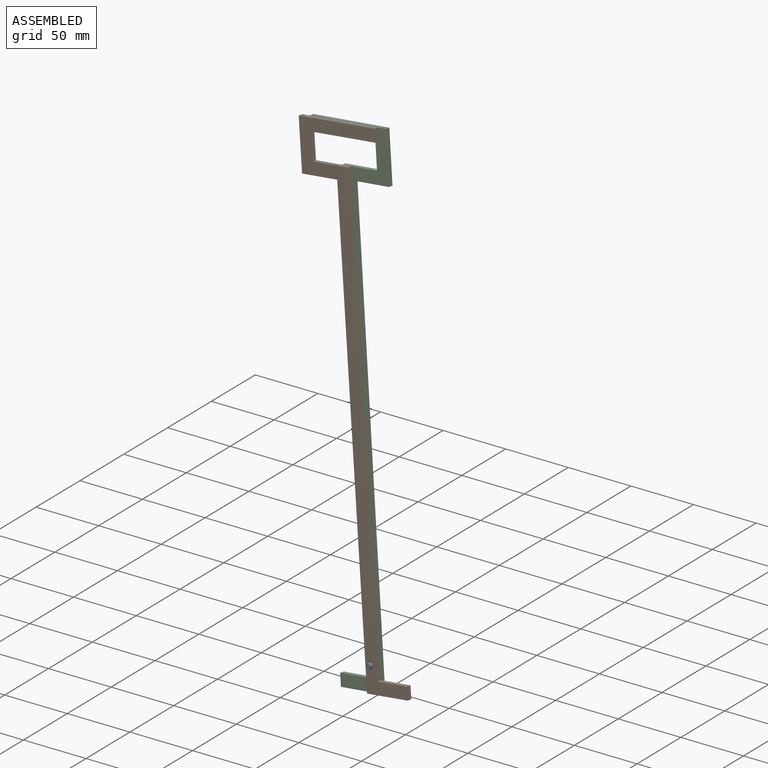
[diagram: assembled view]
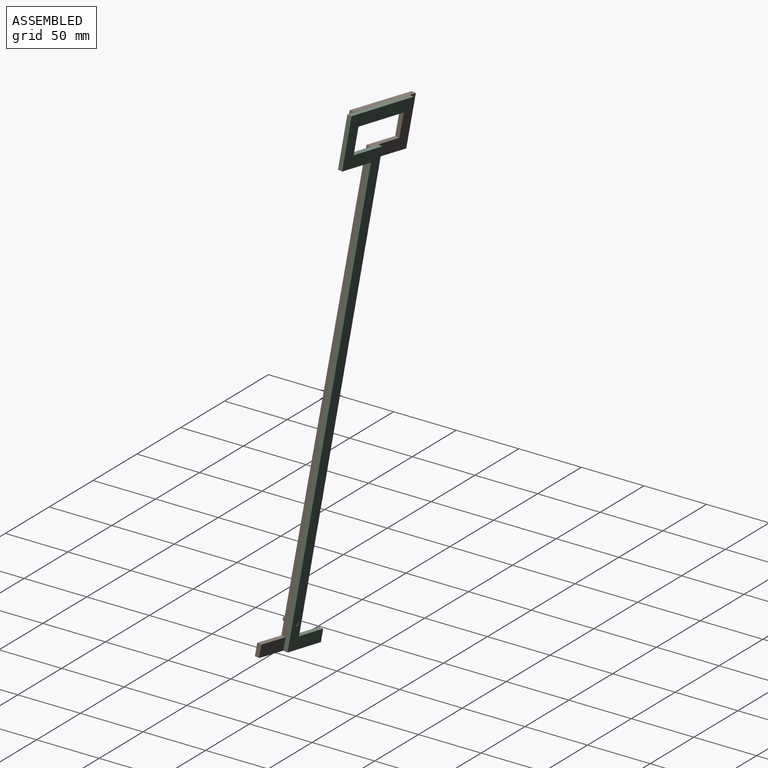
[diagram: assembled view, second angle]
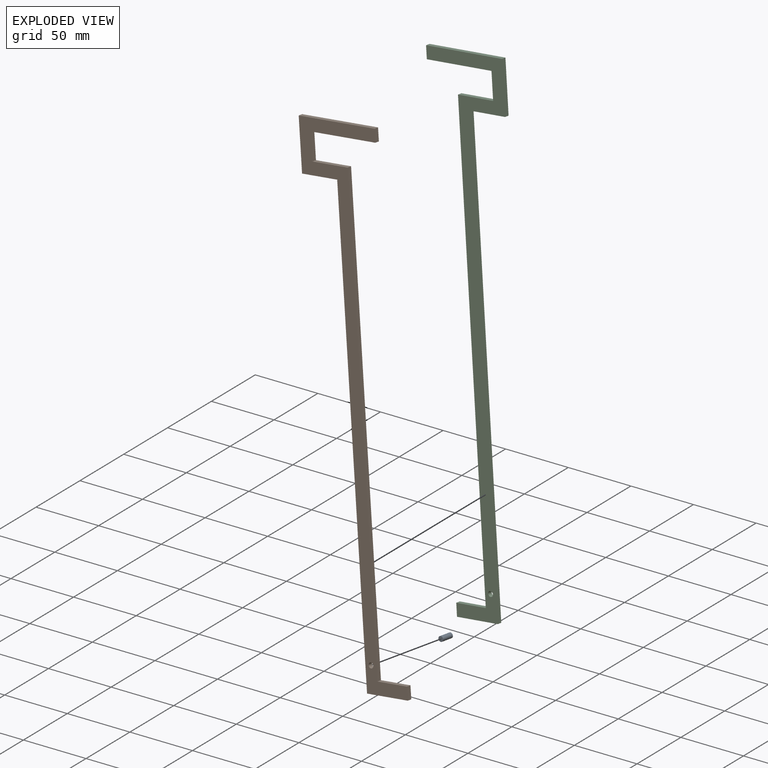
[diagram: exploded view]
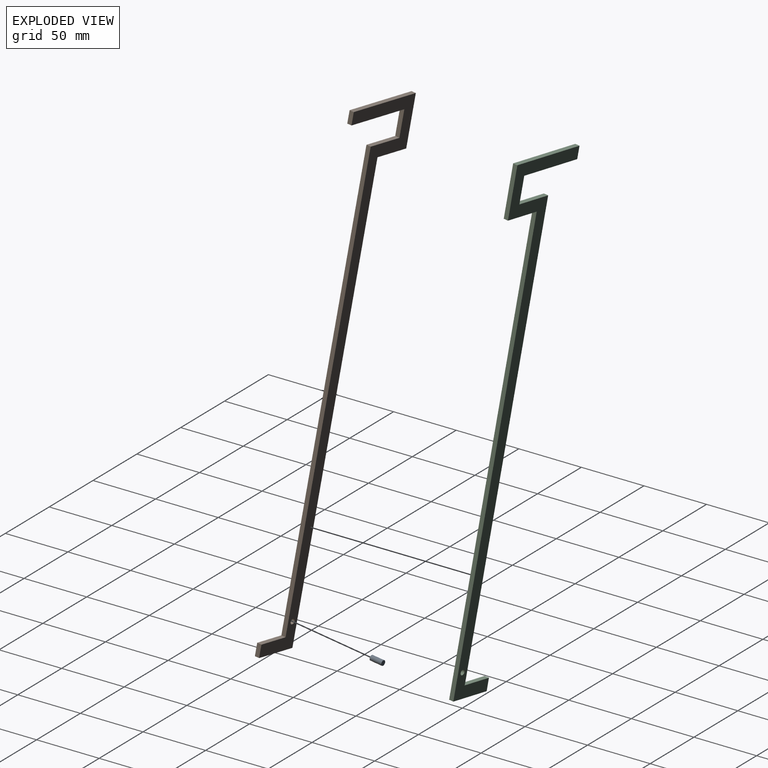
[diagram: exploded view, second angle]
ASSEMBLY  parts=3 mates=2
PART A: 3 faces, bbox 4x10x4 mm
  f0: cylinder r=2mm len=10mm, axis (0,1,0), area 125.7mm2, adj f1,f2
  f1: plane 4x4mm, normal (0,-1,0), area 12.6mm2, adj f0
  f2: plane 4x4mm, normal (0,1,0), area 12.6mm2, adj f0
PART B: 15 faces, bbox 64.8x3.6x389.6 mm
  f0: plane 9.55x3.6mm, normal (1,0,0), area 34.4mm2, adj f2,f3,f10,f12
  f1: plane 9.55x3.6mm, normal (1,0,0), area 34.4mm2, adj f10,f11,f12,f13
  f2: plane 34.78x3.6mm, normal (0,0,-1), area 125.3mm2, adj f0,f5,f10,f12
  f3: plane 25.23x3.6mm, normal (0,0,1), area 90.9mm2, adj f0,f4,f10,f12
  f4: plane 350x3.6mm, normal (1,0,0), area 1261.5mm2, adj f3,f6,f10,f12
  f5: plane 350x3.6mm, normal (-1,0,0), area 1261.5mm2, adj f2,f7,f10,f12
  f6: plane 30x3.6mm, normal (0,0,1), area 108.1mm2, adj f4,f8,f10,f12
  f7: plane 30x3.6mm, normal (0,0,-1), area 108.1mm2, adj f5,f9,f10,f12
  f8: plane 20.45x3.6mm, normal (1,0,0), area 73.7mm2, adj f6,f10,f11,f12
  f9: plane 39.55x3.6mm, normal (-1,0,0), area 142.6mm2, adj f7,f10,f12,f13
  f10: plane 389.55x64.78mm, normal (0,-1,0), area 4762.5mm2, adj f0,f1,f2,f3,f4,f5,f6,f7
  f11: plane 55.23x3.6mm, normal (0,0,-1), area 199.1mm2, adj f1,f8,f10,f12
  f12: plane 389.55x64.78mm, normal (0,1,0), area 4762.5mm2, adj f0,f1,f2,f3,f4,f5,f6,f7
  f13: plane 64.78x3.6mm, normal (0,0,1), area 233.5mm2, adj f1,f9,f10,f12
  f14: cylinder r=2mm len=4mm, axis (0,-1,0), area 45.3mm2, adj f10,f12
PART C: same geometry as B
PLACE A rot(axis=(1,-0.04,0),175deg) t=(-89.95,19.85,58.35)mm
PLACE B rot(axis=(-0.5,-0.75,-0.43),10.8deg) t=(-89.95,19.85,58.35)mm
PLACE C rot(axis=(-0.07,0.05,1),175.3deg) t=(-89.64,23.43,58.04)mm fixed
MATE cylindrical C.f14 <-> A.f0  axis (0.09,0.99,-0.09) through (-89.48,25.22,57.88)mm
MATE revolute A.f0 <-> B.f14  axis (-0.09,-0.99,0.09) through (-89.95,19.85,58.35)mm
